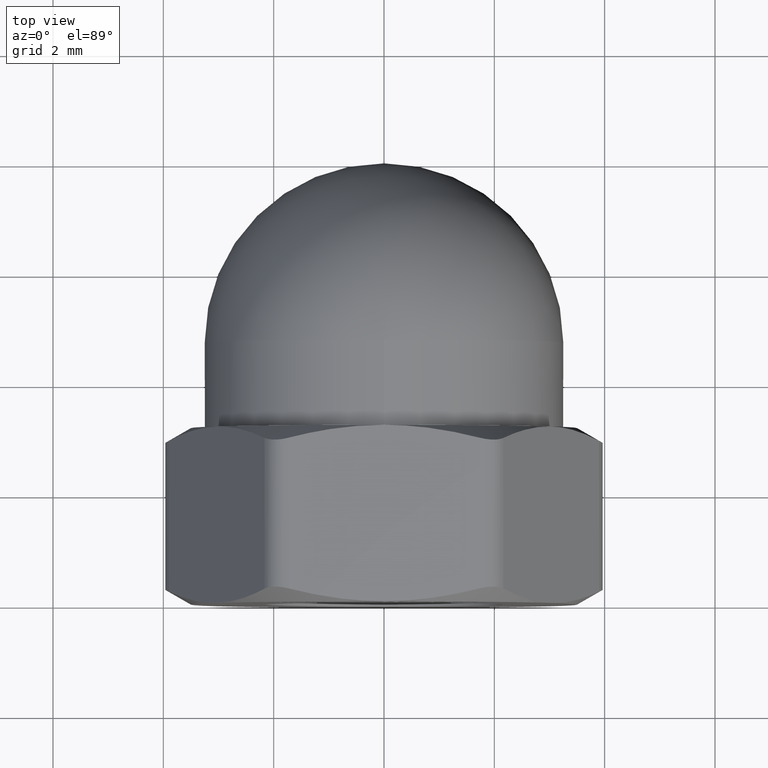
[diagram: clean part render]
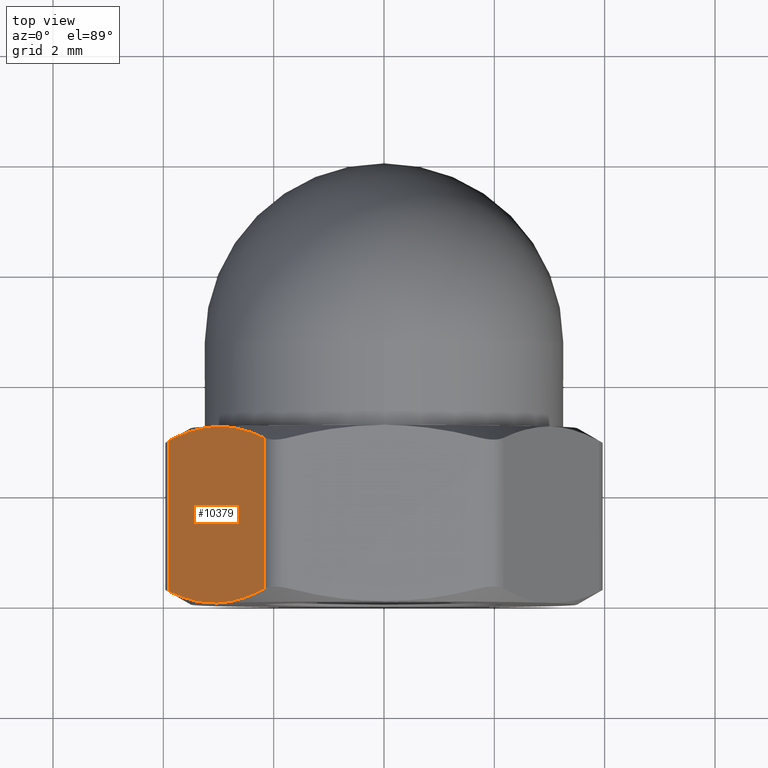
[diagram: same view with one face highlighted and labeled with its STEP entity id]
A machine part, top view. The second image highlights one B-rep face of the part: STEP entity #10379.
In plain terms, the highlighted planar face has unit normal (0.866, 0, -0.5).
Its self-contained STEP definition (entity closure, byte-faithful):
#54 = ORIENTED_EDGE ( 'NONE', *, *, #6814, .F. ) ;
#203 = CARTESIAN_POINT ( 'NONE',  ( -2.306667253663691900, 3.038623072130313600, 3.004735120499117500 ) ) ;
#245 = VERTEX_POINT ( 'NONE', #1730 ) ;
#287 = DIRECTION ( 'NONE',  ( 0.0000000000000000000, -1.000000000000000000, 0.0000000000000000000 ) ) ;
#537 = VECTOR ( 'NONE', #287, 1000.000000000000000 ) ;
#1351 = CARTESIAN_POINT ( 'NONE',  ( -3.755510572827377700, 0.1613769278696868500, 0.4952648795008827700 ) ) ;
#1393 = ORIENTED_EDGE ( 'NONE', *, *, #4703, .F. ) ;
#1730 = CARTESIAN_POINT ( 'NONE',  ( -3.031088913245535600, 3.200000000000000200, 1.750000000000000900 ) ) ;
#2137 = CARTESIAN_POINT ( 'NONE',  ( -3.897114317029780000, 2.966101065752351700, 0.2500000000003355600 ) ) ;
#2162 = ORIENTED_EDGE ( 'NONE', *, *, #3730, .F. ) ;
#2451 = CARTESIAN_POINT ( 'NONE',  ( -4.041451884327380600, 3.200000000000000200, -5.152634503178053200E-016 ) ) ;
#2780 = VECTOR ( 'NONE', #4577, 1000.000000000000000 ) ;
#3587 = FACE_OUTER_BOUND ( 'NONE', #7026, .T. ) ;
#3595 = VERTEX_POINT ( 'NONE', #5769 ) ;
#3730 = EDGE_CURVE ( 'NONE', #5433, #245, #7195, .T. ) ;
#3809 = CARTESIAN_POINT ( 'NONE',  ( -2.165063509461095500, 2.966101065752248600, 3.250000000000000900 ) ) ;
#3937 = EDGE_CURVE ( 'NONE', #5433, #12739, #12438, .T. ) ;
#4225 = CARTESIAN_POINT ( 'NONE',  ( -2.736813175117816400, -3.019070683065948400E-015, 2.259700529872040500 ) ) ;
#4483 = EDGE_CURVE ( 'NONE', #245, #6141, #12392, .T. ) ;
#4577 = DIRECTION ( 'NONE',  ( -0.0000000000000000000, 1.000000000000000000, -0.0000000000000000000 ) ) ;
#4703 = EDGE_CURVE ( 'NONE', #13394, #3595, #6488, .T. ) ;
#5433 = VERTEX_POINT ( 'NONE', #12424 ) ;
#5769 = CARTESIAN_POINT ( 'NONE',  ( -3.031088913245535600, 0.0000000000000000000, 1.750000000000000900 ) ) ;
#5937 = CARTESIAN_POINT ( 'NONE',  ( -3.031088913245535600, 3.200000000000000200, 1.750000000000000900 ) ) ;
#6141 = VERTEX_POINT ( 'NONE', #15504 ) ;
#6241 = CARTESIAN_POINT ( 'NONE',  ( -3.031088913245535600, 0.0000000000000000000, 1.750000000000000900 ) ) ;
#6488 = B_SPLINE_CURVE_WITH_KNOTS ( 'NONE', 3,
 ( #9219, #14171, #4225, #6804 ),
 .UNSPECIFIED., .F., .F.,
 ( 4, 4 ),
 ( 0.0002971722857593340100, 0.002044882221487528400 ),
 .UNSPECIFIED. ) ;
#6804 = CARTESIAN_POINT ( 'NONE',  ( -3.031088913245535600, 0.0000000000000000000, 1.750000000000000900 ) ) ;
#6810 = LINE ( 'NONE', #9575, #2780 ) ;
#6814 = EDGE_CURVE ( 'NONE', #3595, #12739, #7284, .T. ) ;
#7026 = EDGE_LOOP ( 'NONE', ( #1393, #8655, #7550, #2162, #12145, #54 ) ) ;
#7195 = B_SPLINE_CURVE_WITH_KNOTS ( 'NONE', 3,
 ( #2137, #15650, #10814, #5937 ),
 .UNSPECIFIED., .F., .F.,
 ( 4, 4 ),
 ( 0.0002971722857593343300, 0.002044882221487528400 ),
 .UNSPECIFIED. ) ;
#7284 = B_SPLINE_CURVE_WITH_KNOTS ( 'NONE', 3,
 ( #6241, #10051, #14886, #7534, #1351, #11120 ),
 .UNSPECIFIED., .F., .F.,
 ( 4, 2, 4 ),
 ( 0.002044882221487528400, 0.002915149854128580900, 0.003785417486769633400 ),
 .UNSPECIFIED. ) ;
#7534 = CARTESIAN_POINT ( 'NONE',  ( -3.612771519549224900, 0.1025627681746845400, 0.7424961720029253900 ) ) ;
#7550 = ORIENTED_EDGE ( 'NONE', *, *, #4483, .F. ) ;
#8655 = ORIENTED_EDGE ( 'NONE', *, *, #13089, .T. ) ;
#8682 = CARTESIAN_POINT ( 'NONE',  ( -2.737935425120997300, 3.178227301213955200, 2.257756735847739300 ) ) ;
#8839 = CARTESIAN_POINT ( 'NONE',  ( -3.031088913245535600, 3.200000000000000200, 1.750000000000000900 ) ) ;
#9219 = CARTESIAN_POINT ( 'NONE',  ( -2.165063509461289100, 0.2338989342476485700, 3.249999999999665200 ) ) ;
#9575 = CARTESIAN_POINT ( 'NONE',  ( -2.165063509461095000, 3.200000000000000200, 3.250000000000000900 ) ) ;
#9742 = DIRECTION ( 'NONE',  ( 0.8660254037844386000, 0.0000000000000000000, -0.5000000000000001100 ) ) ;
#9831 = CARTESIAN_POINT ( 'NONE',  ( -3.897114317029973600, 0.2338989342477512400, 0.2499999999999993600 ) ) ;
#10022 = CARTESIAN_POINT ( 'NONE',  ( -2.165063509461289100, 0.2338989342476485700, 3.249999999999665200 ) ) ;
#10051 = CARTESIAN_POINT ( 'NONE',  ( -3.177622754318768300, -3.015013775751681300E-015, 1.496195942232935800 ) ) ;
#10379 = ADVANCED_FACE ( 'NONE', ( #3587 ), #10580, .F. ) ;
#10580 = PLANE ( 'NONE',  #13273 ) ;
#10814 = CARTESIAN_POINT ( 'NONE',  ( -3.325364651373252200, 3.200000000000003300, 1.240299470127959500 ) ) ;
#10853 = DIRECTION ( 'NONE',  ( -0.5000000000000001100, 0.0000000000000000000, -0.8660254037844386000 ) ) ;
#10974 = CARTESIAN_POINT ( 'NONE',  ( -3.897114317029973600, 3.200000000000000200, 0.2499999999999995800 ) ) ;
#11120 = CARTESIAN_POINT ( 'NONE',  ( -3.897114317029973600, 0.2338989342477512400, 0.2499999999999993600 ) ) ;
#12145 = ORIENTED_EDGE ( 'NONE', *, *, #3937, .T. ) ;
#12392 = B_SPLINE_CURVE_WITH_KNOTS ( 'NONE', 3,
 ( #8839, #13636, #8682, #14912, #203, #3809 ),
 .UNSPECIFIED., .F., .F.,
 ( 4, 2, 4 ),
 ( 0.002044882221487528400, 0.002915149854128580900, 0.003785417486769633400 ),
 .UNSPECIFIED. ) ;
#12424 = CARTESIAN_POINT ( 'NONE',  ( -3.897114317029780000, 2.966101065752351700, 0.2500000000003355600 ) ) ;
#12438 = LINE ( 'NONE', #10974, #537 ) ;
#12739 = VERTEX_POINT ( 'NONE', #9831 ) ;
#13089 = EDGE_CURVE ( 'NONE', #13394, #6141, #6810, .T. ) ;
#13273 = AXIS2_PLACEMENT_3D ( 'NONE', #2451, #9742, #10853 ) ;
#13394 = VERTEX_POINT ( 'NONE', #10022 ) ;
#13636 = CARTESIAN_POINT ( 'NONE',  ( -2.884555072172301200, 3.200000000000002800, 2.003804057767064600 ) ) ;
#14171 = CARTESIAN_POINT ( 'NONE',  ( -2.448897172366291600, 0.08853422777454896000, 2.758385674949822800 ) ) ;
#14886 = CARTESIAN_POINT ( 'NONE',  ( -3.324242401370071800, 0.02177269878604514600, 1.242243264152262100 ) ) ;
#14912 = CARTESIAN_POINT ( 'NONE',  ( -2.449406306941844600, 3.097437231825315200, 2.757503827997075200 ) ) ;
#15504 = CARTESIAN_POINT ( 'NONE',  ( -2.165063509461095500, 2.966101065752248600, 3.250000000000000900 ) ) ;
#15650 = CARTESIAN_POINT ( 'NONE',  ( -3.613280654124777500, 3.111465772225451100, 0.7416143250501775500 ) ) ;